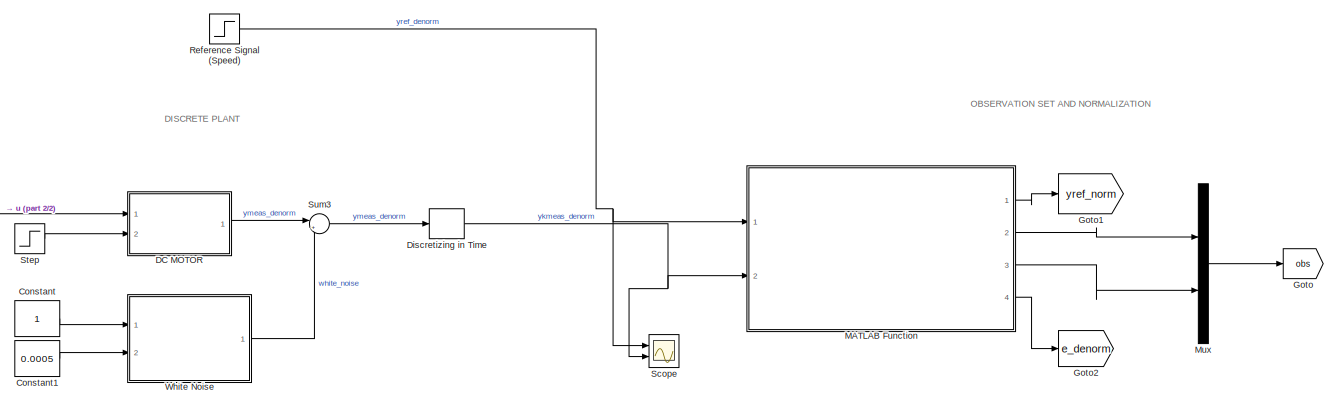
[diagram: root canvas - part 1/2, right side, full height]
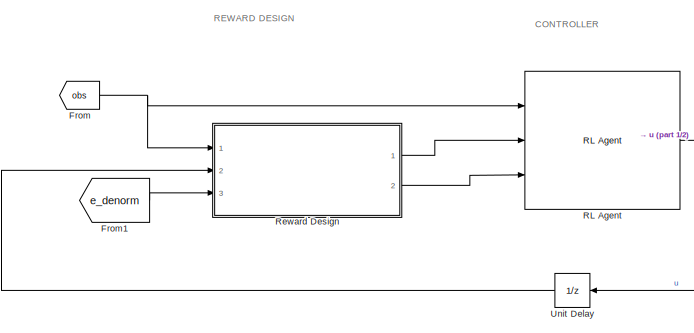
[diagram: root canvas - part 2/2, left side, full height]
MODEL slx_c63f4800184b
KIND model
CONFIG AbsTol = auto
CONFIG EnableMultiTasking = off
CONFIG FixedStep = auto
CONFIG MaxStep = auto
CONFIG MinStep = auto
CONFIG RelTol = 1e-3
CONFIG SampleTimeConstraint = Unconstrained
CONFIG SolverName = FixedStepAuto
CONFIG StartTime = 0.0
CONFIG StopTime = T
BLOCK [Constant] Constant
  SampleTime = Ts
BLOCK [Constant] Constant1
  SampleTime = Ts
  Value = 0.0005
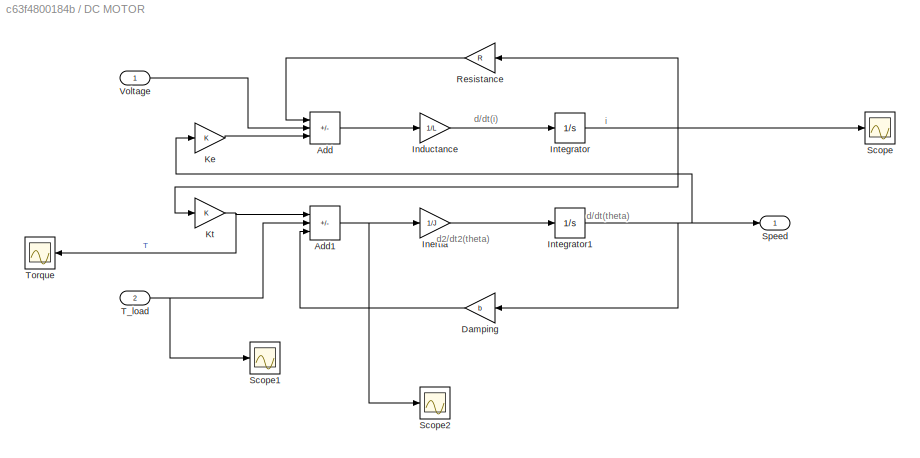
BLOCK [SubSystem] DC MOTOR
  Ports = [2, 1]
  RequestExecContextInheritance = off
BLOCK [Sum] DC MOTOR/Add
  IconShape = rectangular
  Inputs = -+-
  Ports = [3, 1]
BLOCK [Sum] DC MOTOR/Add1
  IconShape = rectangular
  Inputs = +--
  Ports = [3, 1]
BLOCK [Gain] DC MOTOR/Damping
  Gain = b
BLOCK [Gain] DC MOTOR/Inductance
  Gain = 1/L
BLOCK [Gain] DC MOTOR/Inertia
  Gain = 1/J
BLOCK [Integrator] DC MOTOR/Integrator
  Ports = [1, 1]
BLOCK [Integrator] DC MOTOR/Integrator1
  Ports = [1, 1]
BLOCK [Gain] DC MOTOR/Ke
  Gain = K
BLOCK [Gain] DC MOTOR/Kt
  Gain = K
BLOCK [Gain] DC MOTOR/Resistance
  Gain = R
BLOCK [Scope] DC MOTOR/Scope
  Floating = off
  NumInputPorts = 1
  Ports = [1]
  ScopeSpecificationString = Simulink.scopes.TimeScopeBlockCfg('CurrentConfiguration', extmgr.ConfigurationSet(extmgr.Configuration('Core','General UI',true),extmgr.Configuration('Core','Source UI',true),extmgr.Configuration('Sources','WiredSimulink',true,'DataLoggingVariableName','ScopeData1'),extmgr.Configuration('Visuals','Time Domain',true,'SerializedDisplays',{struct('MinYLimReal','-1.81159','MaxYLimReal','16.30435','YLa...<+1501ch>
BLOCK [Scope] DC MOTOR/Scope1
  Floating = off
  NumInputPorts = 1
  Ports = [1]
  ScopeSpecificationString = Simulink.scopes.TimeScopeBlockCfg('CurrentConfiguration', extmgr.ConfigurationSet(extmgr.Configuration('Core','General UI',true),extmgr.Configuration('Core','Source UI',true),extmgr.Configuration('Sources','WiredSimulink',true,'DataLoggingVariableName','ScopeData4'),extmgr.Configuration('Visuals','Time Domain',true,'SerializedDisplays',{struct('MinYLimReal','-1.00000','MaxYLimReal','1.00000','YLab...<+1365ch>
BLOCK [Scope] DC MOTOR/Scope2
  Floating = off
  NumInputPorts = 1
  Ports = [1]
  ScopeSpecificationString = Simulink.scopes.TimeScopeBlockCfg('CurrentConfiguration', extmgr.ConfigurationSet(extmgr.Configuration('Core','General UI',true),extmgr.Configuration('Core','Source UI',true),extmgr.Configuration('Sources','WiredSimulink',true,'DataLoggingVariableName','ScopeData5'),extmgr.Configuration('Visuals','Time Domain',true,'SerializedDisplays',{struct('MinYLimReal','-0.19474','MaxYLimReal','0.20392','YLab...<+1363ch>
BLOCK [Outport] DC MOTOR/Speed
BLOCK [Inport] DC MOTOR/T_load
  Port = 2
BLOCK [Scope] DC MOTOR/Torque
  Floating = off
  NameLocation = top
  NumInputPorts = 1
  Ports = [1]
  ScopeSpecificationString = Simulink.scopes.TimeScopeBlockCfg('CurrentConfiguration', extmgr.ConfigurationSet(extmgr.Configuration('Core','General UI',true),extmgr.Configuration('Core','Source UI',true),extmgr.Configuration('Sources','WiredSimulink',true,'DataLoggingVariableName','ScopeData3'),extmgr.Configuration('Visuals','Time Domain',true,'SerializedDisplays',{struct('MinYLimReal','0.78854','MaxYLimReal','2.13384','YLabe...<+1358ch>
BLOCK [Inport] DC MOTOR/Voltage
BLOCK [ZeroOrderHold] Discretizing in Time
  SampleTime = Ts
BLOCK [From] From
  GotoTag = obs
BLOCK [From] From1
  GotoTag = e_denorm
BLOCK [Goto] Goto
  GotoTag = obs
BLOCK [Goto] Goto1
  GotoTag = yref_norm
BLOCK [Goto] Goto2
  GotoTag = e_denorm
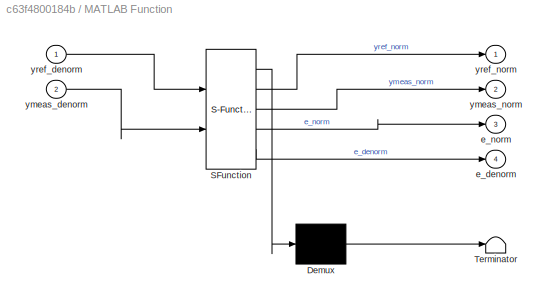
BLOCK [SubSystem] MATLAB Function
  ErrorFcn = Stateflow.Translate.translate
  PermitHierarchicalResolution = ExplicitOnly
  Ports = [2, 4]
  RequestExecContextInheritance = off
  SFBlockType = MATLAB Function
  TreatAsAtomicUnit = on
BLOCK [Demux] MATLAB Function/ Demux 
  Outputs = 1
  Ports = [1, 1]
BLOCK [S-Function] MATLAB Function/ SFunction 
  EnableBusSupport = on
  FunctionName = sf_sfun
  PortCounts = [2 5]
  Ports = [2, 5]
  SFcnIsStateOwnerBlock = off
  SFunctionDeploymentMode = off
  Tag = Stateflow S-Function 3
BLOCK [Terminator] MATLAB Function/ Terminator 
BLOCK [Outport] MATLAB Function/e_denorm
  Port = 4
BLOCK [Outport] MATLAB Function/e_norm
  Port = 3
BLOCK [Inport] MATLAB Function/ymeas_denorm
  Port = 2
BLOCK [Outport] MATLAB Function/ymeas_norm
  Port = 2
BLOCK [Inport] MATLAB Function/yref_denorm
BLOCK [Outport] MATLAB Function/yref_norm
BLOCK [Mux] Mux
  DisplayOption = bar
  Inputs = 2
  Ports = [2, 1]
BLOCK [Reference] RL Agent  REF=rllib/RL Agent
  Ports = [3, 1]
  SourceBlock = rllib/RL Agent
  SourceProductBaseCode = RL
  SourceType = RL Agent
BLOCK [Step] Reference Signal (Speed)
  After = 5
  SampleTime = Ts
  Time = 0
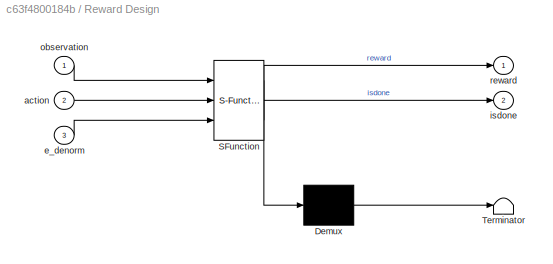
BLOCK [SubSystem] Reward Design
  ErrorFcn = Stateflow.Translate.translate
  PermitHierarchicalResolution = ExplicitOnly
  Ports = [3, 2]
  RequestExecContextInheritance = off
  SFBlockType = MATLAB Function
  TreatAsAtomicUnit = on
BLOCK [Demux] Reward Design/ Demux 
  Outputs = 1
  Ports = [1, 1]
BLOCK [S-Function] Reward Design/ SFunction 
  EnableBusSupport = on
  FunctionName = sf_sfun
  PortCounts = [3 3]
  Ports = [3, 3]
  SFcnIsStateOwnerBlock = off
  SFunctionDeploymentMode = off
  Tag = Stateflow S-Function 2
BLOCK [Terminator] Reward Design/ Terminator 
BLOCK [Inport] Reward Design/action
  Port = 2
BLOCK [Inport] Reward Design/e_denorm
  Port = 3
BLOCK [Outport] Reward Design/isdone
  Port = 2
BLOCK [Inport] Reward Design/observation
BLOCK [Outport] Reward Design/reward
BLOCK [Scope] Scope
  Floating = off
  NumInputPorts = 2
  Ports = [2]
  ScopeSpecificationString = Simulink.scopes.TimeScopeBlockCfg('CurrentConfiguration', extmgr.ConfigurationSet(extmgr.Configuration('Core','General UI',true),extmgr.Configuration('Core','Source UI',true),extmgr.Configuration('Sources','WiredSimulink',true,'DataLoggingVariableName','ScopeData1'),extmgr.Configuration('Visuals','Time Domain',true,'SerializedDisplays',{struct('MinYLimReal','-0.70328','MaxYLimReal','6.33363','YLab...<+1440ch>
BLOCK [Step] Step
  After = 0.001
  SampleTime = Ts
  Time = 0
BLOCK [Sum] Sum3
  Inputs = |++
  Ports = [2, 1]
BLOCK [UnitDelay] Unit Delay
  HasFrameUpgradeWarning = on
  SampleTime = Ts
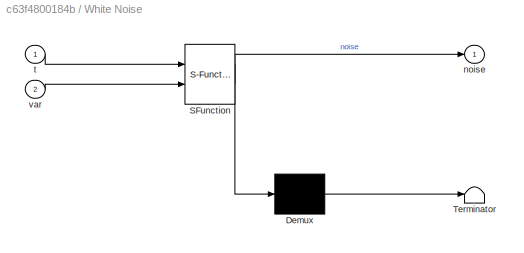
BLOCK [SubSystem] White Noise
  ErrorFcn = Stateflow.Translate.translate
  PermitHierarchicalResolution = ExplicitOnly
  Ports = [2, 1]
  RequestExecContextInheritance = off
  SFBlockType = MATLAB Function
  TreatAsAtomicUnit = on
BLOCK [Demux] White Noise/ Demux 
  Outputs = 1
  Ports = [1, 1]
BLOCK [S-Function] White Noise/ SFunction 
  EnableBusSupport = on
  FunctionName = sf_sfun
  PortCounts = [2 2]
  Ports = [2, 2]
  SFcnIsStateOwnerBlock = off
  SFunctionDeploymentMode = off
  Tag = Stateflow S-Function 1
BLOCK [Terminator] White Noise/ Terminator 
BLOCK [Outport] White Noise/noise
BLOCK [Inport] White Noise/t
BLOCK [Inport] White Noise/var
  Port = 2
ANNOTATION (root): DISCRETE PLANT
ANNOTATION (root): CONTROLLER
ANNOTATION (root): OBSERVATION SET AND NORMALIZATION
ANNOTATION (root): REWARD DESIGN
ANNOTATION DC MOTOR: d/dt(i)
ANNOTATION DC MOTOR: d/dt(theta)
ANNOTATION DC MOTOR: d2/dt2(theta)
ANNOTATION DC MOTOR: i
LINE Constant1:1 -> White Noise:2
LINE Constant:1 -> White Noise:1
NET DC MOTOR/Add1:1 -> DC MOTOR/Inertia:1, DC MOTOR/Scope2:1
LINE DC MOTOR/Add:1 -> DC MOTOR/Inductance:1
LINE DC MOTOR/Damping:1 -> DC MOTOR/Add1:3
LINE DC MOTOR/Inductance:1 -> DC MOTOR/Integrator:1
LINE DC MOTOR/Inertia:1 -> DC MOTOR/Integrator1:1
NET DC MOTOR/Integrator1:1 -> DC MOTOR/Damping:1, DC MOTOR/Ke:1, DC MOTOR/Speed:1
NET DC MOTOR/Integrator:1 -> DC MOTOR/Kt:1, DC MOTOR/Resistance:1, DC MOTOR/Scope:1
LINE DC MOTOR/Ke:1 -> DC MOTOR/Add:3
NET DC MOTOR/Kt:1 -> DC MOTOR/Add1:1, DC MOTOR/Torque:1
LINE DC MOTOR/Resistance:1 -> DC MOTOR/Add:1
NET DC MOTOR/T_load:1 -> DC MOTOR/Add1:2, DC MOTOR/Scope1:1
LINE DC MOTOR/Voltage:1 -> DC MOTOR/Add:2
LINE DC MOTOR:1 -> Sum3:1
NET Discretizing in Time:1 -> MATLAB Function:2, Scope:2
LINE From1:1 -> Reward Design:3
NET From:1 -> RL Agent:1, Reward Design:1
LINE MATLAB Function:1 -> Goto1:1
LINE MATLAB Function:2 -> Mux:1
LINE MATLAB Function:3 -> Mux:2
LINE MATLAB Function:4 -> Goto2:1
LINE Mux:1 -> Goto:1
NET RL Agent:1 -> DC MOTOR:1, Unit Delay:1
NET Reference Signal (Speed):1 -> MATLAB Function:1, Scope:1
LINE Reward Design:1 -> RL Agent:2
LINE Reward Design:2 -> RL Agent:3
LINE Step:1 -> DC MOTOR:2
LINE Sum3:1 -> Discretizing in Time:1
LINE Unit Delay:1 -> Reward Design:2
LINE White Noise:1 -> Sum3:2
note: NET lines group one-source signal fan-out (src -> all destinations, sorted); 1:1 wires keep LINE
CHART White Noise states=1 transitions=1
  STATE_LABEL 'eML_blk_kernel()'
  STATE_LABEL "SCRIPT:\nfunction noise  = noise(t,var)\n    bruitn=rand(length(var),length(t));\n    %bruitn=(bruit-(mean(bruit'))'*ones(1,length(t)))./((std(bruit'))'*ones(1,length(t)));\n    noise=[(var(1)*bruitn(1,:)')];  \nend\n"
CHART Reward Design states=1 transitions=1
  STATE_LABEL 'eML_blk_kernel()'
  STATE_LABEL "SCRIPT:\nfunction [reward,isdone] = reward(observation, action,e_denorm)\n\n\ne = observation(2);\nu = action;\n\n\nQ = 2000;\nR = 0.001;\n\n% calculate reward value\nreward = -(e_denorm'*Q*e_denorm)-(u'*R*u);\n\n% done if succeeded the convergenze\n% isdone = madeit\nisdone = 0;\n"
CHART MATLAB Function states=1 transitions=1
  STATE_LABEL 'eML_blk_kernel()'
  STATE_LABEL 'SCRIPT:\nfunction [yref_norm,ymeas_norm,e_norm,e_denorm] = fcn(yref_denorm,ymeas_denorm)\n\n%% States NORMALIZATION\n\nyref_max = 12;\nyref_min = 0;\n\nymeas_max = 12;\nymeas_min = 0;\n\n\nyref_norm = 2*((yref_denorm - yref_min)/(yref_max - yref_min)) - 1;\n\nymeas_norm = 2*((ymeas_denorm - ymeas_min)/(ymeas_max - ymeas_min)) - 1;\n\n\ne_denorm = yref_denorm - ymeas_denorm;\n\ne_max = 2;\ne_min = -2;\n\ne_norm = 2*((e_...<+38ch>'
CHART  states=0 transitions=0
CHART  states=0 transitions=0
CHART  states=0 transitions=0
